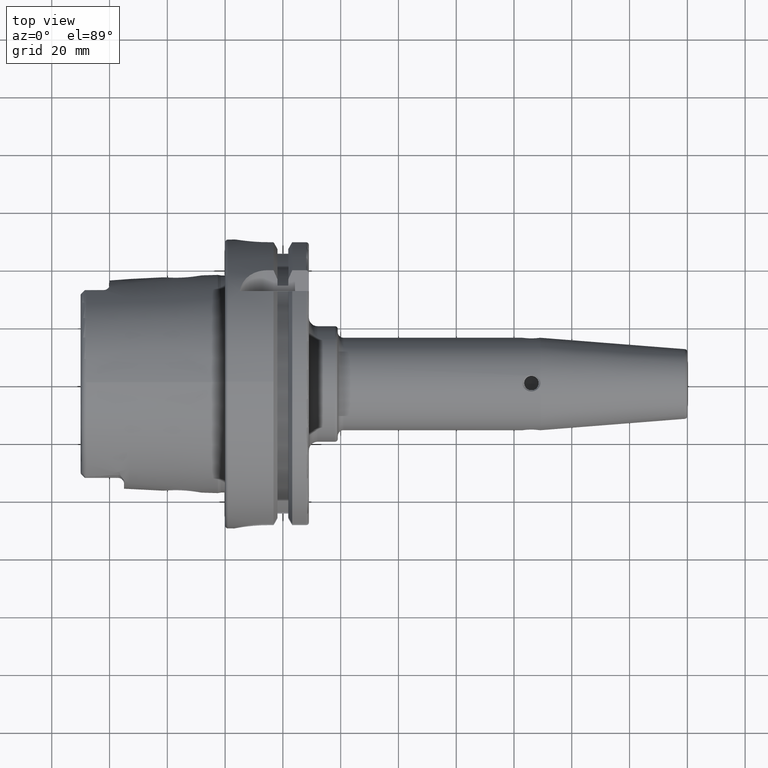
[diagram: clean part render]
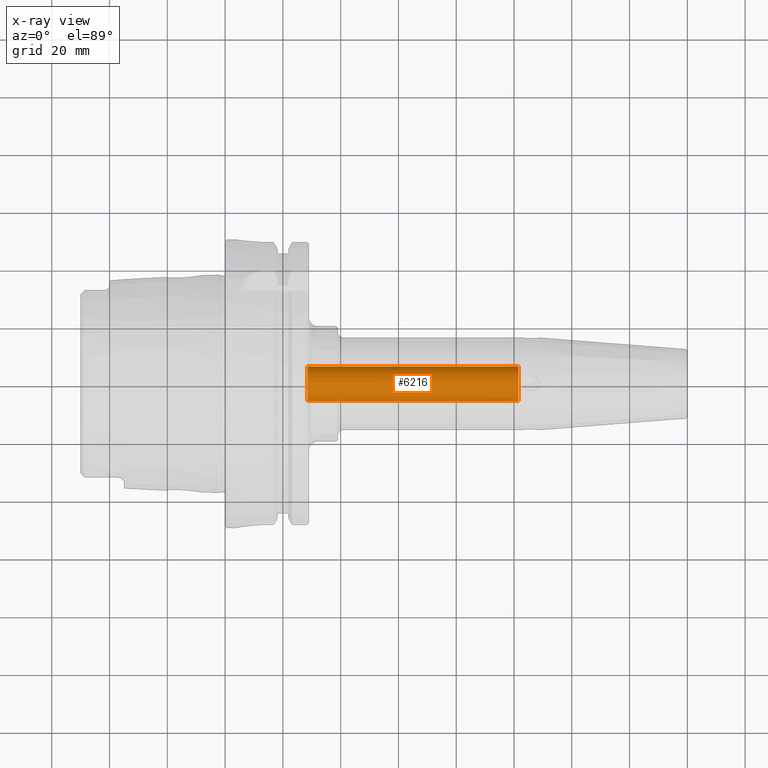
[diagram: x-ray — body ghosted, one internal face saturated and labeled with its STEP entity id]
A machine part, top view, then the same camera in x-ray: the body is ghosted and one INTERNAL B-rep face — a face not visible from any outside direction — is saturated and labeled: STEP entity #6216.
In plain terms, the highlighted cylindrical surface (edge-blend (fillet) strip) has radius 6 mm, axis along (-1, 0, 0).
Its self-contained STEP definition (entity closure, byte-faithful):
#2621=DIRECTION('',(-1.E0,0.E0,0.E0));
#2622=VECTOR('',#2621,7.3E1);
#2623=CARTESIAN_POINT('',(1.015E2,-6.E0,0.E0));
#2624=LINE('',#2623,#2622);
#2625=CARTESIAN_POINT('',(1.015E2,0.E0,0.E0));
#2626=DIRECTION('',(1.E0,0.E0,0.E0));
#2627=DIRECTION('',(0.E0,1.E0,0.E0));
#2628=AXIS2_PLACEMENT_3D('',#2625,#2626,#2627);
#2630=DIRECTION('',(-1.E0,0.E0,0.E0));
#2631=VECTOR('',#2630,7.3E1);
#2632=CARTESIAN_POINT('',(1.015E2,6.E0,0.E0));
#2633=LINE('',#2632,#2631);
#2639=CARTESIAN_POINT('',(2.85E1,0.E0,0.E0));
#2640=DIRECTION('',(-1.E0,0.E0,0.E0));
#2641=DIRECTION('',(0.E0,-1.E0,0.E0));
#2642=AXIS2_PLACEMENT_3D('',#2639,#2640,#2641);
#3282=CARTESIAN_POINT('',(1.015E2,6.E0,0.E0));
#3283=CARTESIAN_POINT('',(1.015E2,-6.E0,0.E0));
#3284=VERTEX_POINT('',#3282);
#3285=VERTEX_POINT('',#3283);
#3286=CARTESIAN_POINT('',(2.85E1,6.E0,0.E0));
#3287=CARTESIAN_POINT('',(2.85E1,-6.E0,0.E0));
#3288=VERTEX_POINT('',#3286);
#3289=VERTEX_POINT('',#3287);
#6202=CARTESIAN_POINT('',(1.128604218999E2,0.E0,0.E0));
#6203=DIRECTION('',(-1.E0,0.E0,0.E0));
#6204=DIRECTION('',(0.E0,1.E0,0.E0));
#6205=AXIS2_PLACEMENT_3D('',#6202,#6203,#6204);
#6206=CYLINDRICAL_SURFACE('',#6205,6.E0);
#6208=ORIENTED_EDGE('',*,*,#6207,.F.);
#6210=ORIENTED_EDGE('',*,*,#6209,.F.);
#6211=ORIENTED_EDGE('',*,*,#6184,.F.);
#6213=ORIENTED_EDGE('',*,*,#6212,.T.);
#6214=EDGE_LOOP('',(#6208,#6210,#6211,#6213));
#6215=FACE_OUTER_BOUND('',#6214,.F.);
#6216=ADVANCED_FACE('',(#6215),#6206,.F.);
#2629=CIRCLE('',#2628,6.E0);
#2643=CIRCLE('',#2642,6.E0);
#6184=EDGE_CURVE('',#3284,#3285,#2629,.T.);
#6207=EDGE_CURVE('',#3289,#3288,#2643,.T.);
#6209=EDGE_CURVE('',#3285,#3289,#2624,.T.);
#6212=EDGE_CURVE('',#3284,#3288,#2633,.T.);